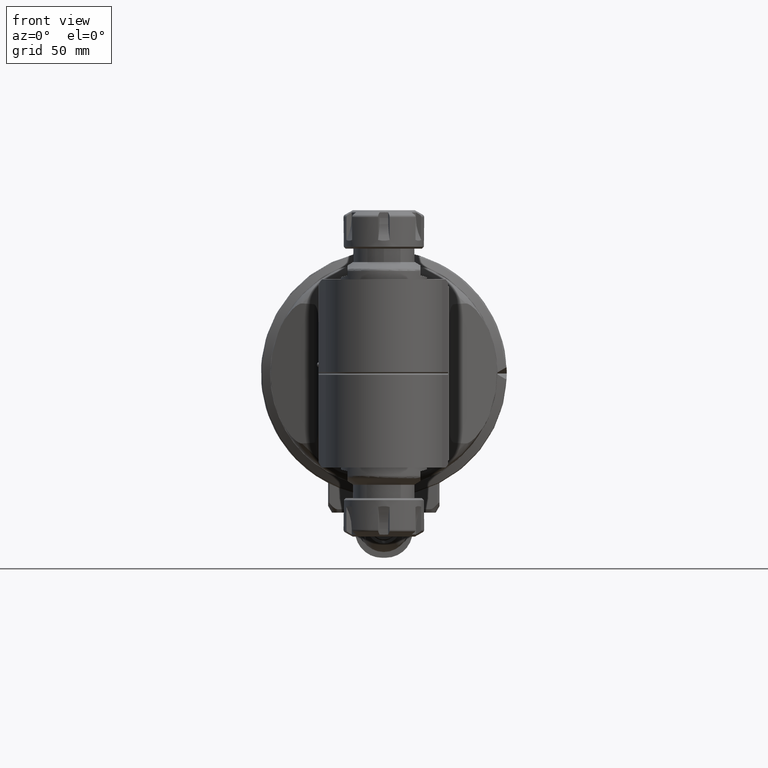
[diagram: clean part render]
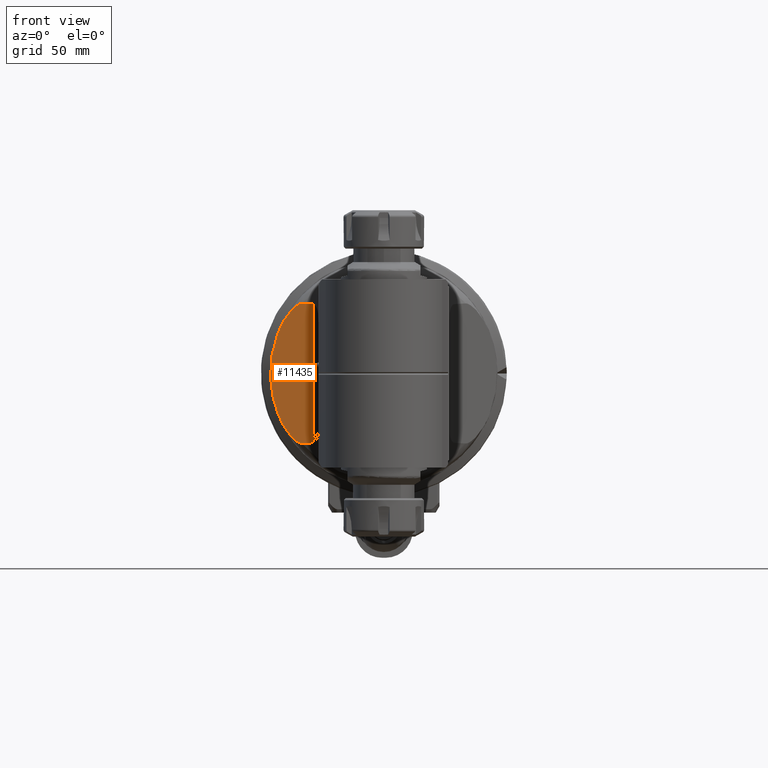
[diagram: same view with one face highlighted and labeled with its STEP entity id]
A machine part, front view. The second image highlights one B-rep face of the part: STEP entity #11435.
In plain terms, the highlighted planar face has unit normal (0.342, 0.9397, 0).
Its self-contained STEP definition (entity closure, byte-faithful):
#178=B_SPLINE_CURVE_WITH_KNOTS('',3,(#17282,#17283,#17284,#17285,#17286,
#17287,#17288,#17289,#17290,#17291,#17292,#17293,#17294,#17295,#17296,#17297),
 .UNSPECIFIED.,.F.,.F.,(4,2,2,2,2,2,2,4),(3.63773681561043,3.65274723397739,
3.79927593864824,4.11220997706673,4.52221276210146,4.93221554713619,5.29892483222005,
5.61335365542043),.UNSPECIFIED.);
#200=B_SPLINE_CURVE_WITH_KNOTS('',3,(#17948,#17949,#17950,#17951,#17952,
#17953,#17954,#17955,#17956,#17957,#17958,#17959,#17960,#17961,#17962,#17963),
 .UNSPECIFIED.,.F.,.F.,(4,2,2,2,2,2,2,4),(9.68030428143882,9.9947331046392,
10.3614423897231,10.7714451747578,11.1814479597925,11.494381998211,11.6409107028819,
11.6559211212837),.UNSPECIFIED.);
#434=ELLIPSE('',#12199,62.7864885760796,59.);
#437=ELLIPSE('',#12208,62.1233155909331,36.4919332928876);
#441=ELLIPSE('',#12279,62.1233155909331,36.4919332928876);
#1611=FACE_OUTER_BOUND('',#2336,.T.);
#2336=EDGE_LOOP('',(#7863,#7864,#7865,#7866,#7867,#7868));
#3143=LINE('',#17965,#3896);
#3896=VECTOR('',#13909,72.12424357356);
#4630=VERTEX_POINT('',#17275);
#4631=VERTEX_POINT('',#17277);
#4632=VERTEX_POINT('',#17281);
#4640=VERTEX_POINT('',#17364);
#4740=VERTEX_POINT('',#17909);
#4741=VERTEX_POINT('',#17927);
#5802=EDGE_CURVE('',#4631,#4630,#434,.T.);
#5804=EDGE_CURVE('',#4632,#4631,#178,.T.);
#5814=EDGE_CURVE('',#4640,#4632,#437,.T.);
#5948=EDGE_CURVE('',#4741,#4740,#441,.T.);
#5951=EDGE_CURVE('',#4630,#4741,#200,.T.);
#5952=EDGE_CURVE('',#4640,#4740,#3143,.T.);
#7863=ORIENTED_EDGE('',*,*,#5948,.T.);
#7864=ORIENTED_EDGE('',*,*,#5952,.F.);
#7865=ORIENTED_EDGE('',*,*,#5814,.T.);
#7866=ORIENTED_EDGE('',*,*,#5804,.T.);
#7867=ORIENTED_EDGE('',*,*,#5802,.T.);
#7868=ORIENTED_EDGE('',*,*,#5951,.T.);
#11067=PLANE('',#12283);
#11435=ADVANCED_FACE('',(#1611),#11067,.F.);
#12199=AXIS2_PLACEMENT_3D('',#17278,#13706,#13707);
#12208=AXIS2_PLACEMENT_3D('',#17365,#13725,#13726);
#12279=AXIS2_PLACEMENT_3D('',#17928,#13899,#13900);
#12283=AXIS2_PLACEMENT_3D('',#17964,#13907,#13908);
#13706=DIRECTION('center_axis',(0.939692620785897,0.,-0.342020143325699));
#13707=DIRECTION('ref_axis',(-0.342020143325699,0.,-0.939692620785897));
#13725=DIRECTION('center_axis',(0.939692620785897,0.,-0.342020143325699));
#13726=DIRECTION('ref_axis',(-0.3420201433257,-5.36138331026489E-16,-0.939692620785897));
#13899=DIRECTION('center_axis',(0.939692620785897,0.,-0.342020143325699));
#13900=DIRECTION('ref_axis',(-0.3420201433257,-5.36138331026489E-16,-0.939692620785897));
#13907=DIRECTION('center_axis',(-0.939692620785897,0.,0.342020143325699));
#13908=DIRECTION('ref_axis',(-0.342020143325699,0.,-0.939692620785897));
#13909=DIRECTION('',(1.891516617804E-14,1.,5.152412453706E-14));
#17275=CARTESIAN_POINT('',(192.877745632,21.05470234073,-55.11532916842));
#17277=CARTESIAN_POINT('',(192.877745632,-21.05470234073,-55.11532916842));
#17278=CARTESIAN_POINT('Origin',(212.938084901058,0.,0.));
#17281=CARTESIAN_POINT('',(197.409284567,-36.44687063472,-42.66502826898));
#17282=CARTESIAN_POINT('Ctrl Pts',(197.409284567019,-36.4468706347329,-42.6650282689866));
#17283=CARTESIAN_POINT('Ctrl Pts',(197.391047714437,-36.4484286364148,-42.7151336096593));
#17284=CARTESIAN_POINT('Ctrl Pts',(197.373165303821,-36.4478667741063,-42.7642651290308));
#17285=CARTESIAN_POINT('Ctrl Pts',(197.189156047642,-36.4256948877559,-43.2698264053529));
#17286=CARTESIAN_POINT('Ctrl Pts',(196.998861617754,-36.2413914190267,-43.7926560545199));
#17287=CARTESIAN_POINT('Ctrl Pts',(196.520537533372,-35.6170940452338,-45.1068406755387));
#17288=CARTESIAN_POINT('Ctrl Pts',(196.172274863789,-34.889078651067,-46.0636844962564));
#17289=CARTESIAN_POINT('Ctrl Pts',(195.543014997039,-33.3327687859109,-47.7925617711215));
#17290=CARTESIAN_POINT('Ctrl Pts',(195.189002332923,-32.2522221109693,-48.7652035719811));
#17291=CARTESIAN_POINT('Ctrl Pts',(194.54133418447,-29.9393153926789,-50.544657185157));
#17292=CARTESIAN_POINT('Ctrl Pts',(194.247715797437,-28.7068665472737,-51.3513670734661));
#17293=CARTESIAN_POINT('Ctrl Pts',(193.779751006201,-26.5089003436226,-52.6370897704877));
#17294=CARTESIAN_POINT('Ctrl Pts',(193.555560964085,-25.3362847852521,-53.2530468488656));
#17295=CARTESIAN_POINT('Ctrl Pts',(193.176660968238,-23.103187317417,-54.294066031687));
#17296=CARTESIAN_POINT('Ctrl Pts',(193.016270121653,-22.0509882551094,-54.7347362609661));
#17297=CARTESIAN_POINT('Ctrl Pts',(192.877745631968,-21.0547023407338,-55.1153291684183));
#17364=CARTESIAN_POINT('',(199.6051566057,-36.06212178678,-36.6319194267));
#17365=CARTESIAN_POINT('Origin',(196.353689964413,-1.11022302462516E-14,
-45.5652506037463));
#17909=CARTESIAN_POINT('',(199.6051566057,36.06212178678,-36.63191942669));
#17927=CARTESIAN_POINT('',(197.4092845672,36.44687063463,-42.66502826866));
#17928=CARTESIAN_POINT('Origin',(196.353689964413,-1.11022302462516E-14,
-45.5652506037463));
#17948=CARTESIAN_POINT('Ctrl Pts',(192.877745631968,21.0547023407338,-55.1153291684183));
#17949=CARTESIAN_POINT('Ctrl Pts',(193.016270121653,22.0509882551094,-54.7347362609661));
#17950=CARTESIAN_POINT('Ctrl Pts',(193.176660968238,23.103187317417,-54.294066031687));
#17951=CARTESIAN_POINT('Ctrl Pts',(193.555560964085,25.3362847852521,-53.2530468488655));
#17952=CARTESIAN_POINT('Ctrl Pts',(193.779751006201,26.5089003436226,-52.6370897704877));
#17953=CARTESIAN_POINT('Ctrl Pts',(194.247715797437,28.7068665472737,-51.3513670734661));
#17954=CARTESIAN_POINT('Ctrl Pts',(194.54133418447,29.9393153926789,-50.544657185157));
#17955=CARTESIAN_POINT('Ctrl Pts',(195.189002332923,32.2522221109693,-48.7652035719811));
#17956=CARTESIAN_POINT('Ctrl Pts',(195.543014997039,33.3327687859109,-47.7925617711215));
#17957=CARTESIAN_POINT('Ctrl Pts',(196.172274863789,34.889078651067,-46.0636844962564));
#17958=CARTESIAN_POINT('Ctrl Pts',(196.520537533372,35.6170940452338,-45.1068406755387));
#17959=CARTESIAN_POINT('Ctrl Pts',(196.998861617754,36.2413914190267,-43.7926560545199));
#17960=CARTESIAN_POINT('Ctrl Pts',(197.189156047642,36.4256948877559,-43.2698264053529));
#17961=CARTESIAN_POINT('Ctrl Pts',(197.373165303861,36.447866774111,-42.7642651289218));
#17962=CARTESIAN_POINT('Ctrl Pts',(197.39104771452,36.4484286364174,-42.7151336094312));
#17963=CARTESIAN_POINT('Ctrl Pts',(197.409284567146,36.446870634722,-42.6650282686376));
#17964=CARTESIAN_POINT('Origin',(199.6051566057,-70.8000024,-36.6319194267));
#17965=CARTESIAN_POINT('',(199.6051566057,-36.06212178678,-36.6319194267));